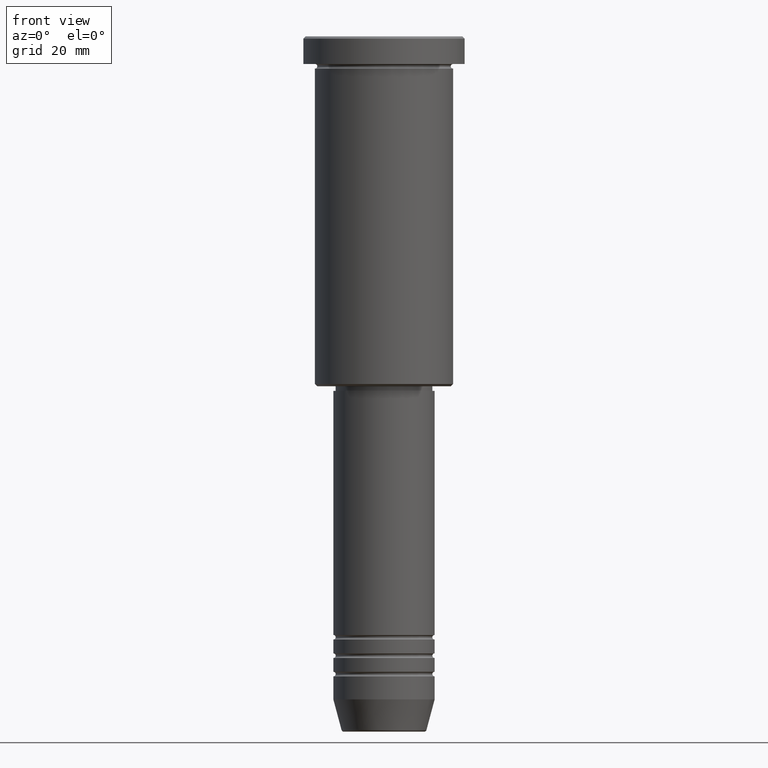
[diagram: clean part render]
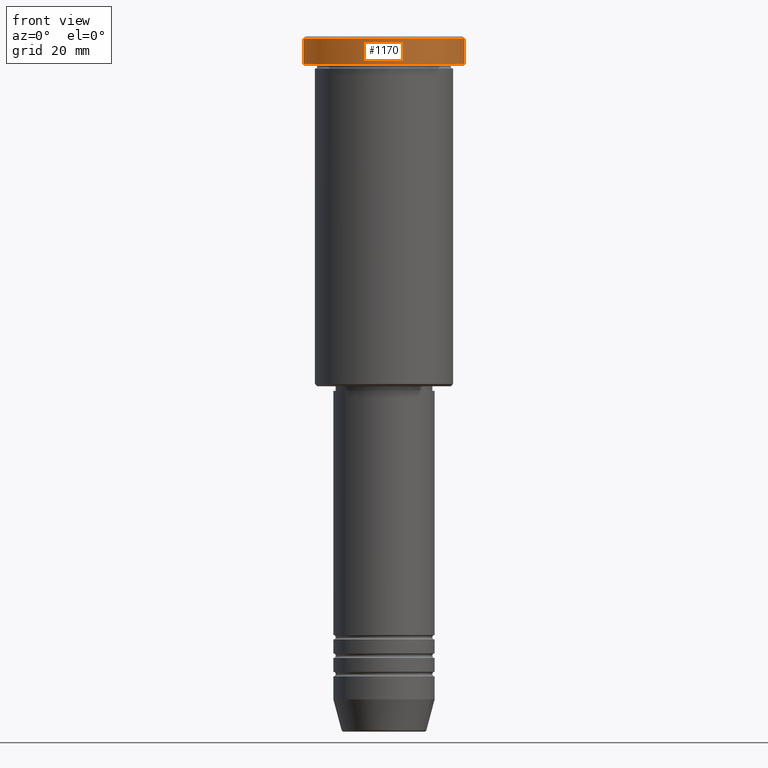
[diagram: same view with one face highlighted and labeled with its STEP entity id]
A machine part, front view. The second image highlights one B-rep face of the part: STEP entity #1170.
In plain terms, the highlighted cylindrical surface (partial cylindrical patch) has radius 17.5 mm, axis along (-0, -0, 1).
Its self-contained STEP definition (entity closure, byte-faithful):
#34 = CARTESIAN_POINT ( 'NONE',  ( -17.50000000000000000, 2.143131898507868248E-15, 0.000000000000000000 ) ) ;
#102 = ORIENTED_EDGE ( 'NONE', *, *, #1139, .T. ) ;
#106 = VERTEX_POINT ( 'NONE', #324 ) ;
#161 = DIRECTION ( 'NONE',  ( 1.000000000000000000, 0.000000000000000000, 0.000000000000000000 ) ) ;
#210 = VECTOR ( 'NONE', #574, 1000.000000000000000 ) ;
#223 = LINE ( 'NONE', #34, #210 ) ;
#305 = CARTESIAN_POINT ( 'NONE',  ( -17.50000000000000000, 2.143131898507868248E-15, -5.999999999999995559 ) ) ;
#324 = CARTESIAN_POINT ( 'NONE',  ( 17.50000000000000000, 0.000000000000000000, -0.4999999999999865663 ) ) ;
#333 = CARTESIAN_POINT ( 'NONE',  ( 17.50000000000000000, 0.000000000000000000, -5.999999999999995559 ) ) ;
#338 = AXIS2_PLACEMENT_3D ( 'NONE', #698, #795, #1157 ) ;
#342 = CARTESIAN_POINT ( 'NONE',  ( -17.50000000000000000, 2.143131898507868248E-15, -0.4999999999999865663 ) ) ;
#429 = AXIS2_PLACEMENT_3D ( 'NONE', #967, #974, #161 ) ;
#439 = CYLINDRICAL_SURFACE ( 'NONE', #338, 17.50000000000000000 ) ;
#455 = EDGE_CURVE ( 'NONE', #713, #1177, #223, .T. ) ;
#484 = DIRECTION ( 'NONE',  ( 0.000000000000000000, 0.000000000000000000, -1.000000000000000000 ) ) ;
#491 = LINE ( 'NONE', #855, #898 ) ;
#512 = CIRCLE ( 'NONE', #429, 17.50000000000000000 ) ;
#527 = FACE_OUTER_BOUND ( 'NONE', #669, .T. ) ;
#535 = VERTEX_POINT ( 'NONE', #333 ) ;
#552 = CARTESIAN_POINT ( 'NONE',  ( 0.000000000000000000, 0.000000000000000000, -0.4999999999999865663 ) ) ;
#574 = DIRECTION ( 'NONE',  ( -0.000000000000000000, -0.000000000000000000, 1.000000000000000000 ) ) ;
#604 = CIRCLE ( 'NONE', #1164, 17.50000000000000000 ) ;
#643 = DIRECTION ( 'NONE',  ( 1.000000000000000000, 0.000000000000000000, 0.000000000000000000 ) ) ;
#669 = EDGE_LOOP ( 'NONE', ( #1061, #102, #788, #1089 ) ) ;
#698 = CARTESIAN_POINT ( 'NONE',  ( 0.000000000000000000, 0.000000000000000000, 0.000000000000000000 ) ) ;
#713 = VERTEX_POINT ( 'NONE', #305 ) ;
#788 = ORIENTED_EDGE ( 'NONE', *, *, #1108, .T. ) ;
#795 = DIRECTION ( 'NONE',  ( -0.000000000000000000, -0.000000000000000000, 1.000000000000000000 ) ) ;
#855 = CARTESIAN_POINT ( 'NONE',  ( 17.50000000000000000, 0.000000000000000000, 0.000000000000000000 ) ) ;
#898 = VECTOR ( 'NONE', #1128, 1000.000000000000000 ) ;
#967 = CARTESIAN_POINT ( 'NONE',  ( 0.000000000000000000, 0.000000000000000000, -5.999999999999995559 ) ) ;
#974 = DIRECTION ( 'NONE',  ( -0.000000000000000000, -0.000000000000000000, 1.000000000000000000 ) ) ;
#1045 = EDGE_CURVE ( 'NONE', #106, #1177, #604, .T. ) ;
#1061 = ORIENTED_EDGE ( 'NONE', *, *, #455, .F. ) ;
#1089 = ORIENTED_EDGE ( 'NONE', *, *, #1045, .T. ) ;
#1108 = EDGE_CURVE ( 'NONE', #535, #106, #491, .T. ) ;
#1128 = DIRECTION ( 'NONE',  ( -0.000000000000000000, -0.000000000000000000, 1.000000000000000000 ) ) ;
#1139 = EDGE_CURVE ( 'NONE', #713, #535, #512, .T. ) ;
#1157 = DIRECTION ( 'NONE',  ( 1.000000000000000000, 0.000000000000000000, 0.000000000000000000 ) ) ;
#1164 = AXIS2_PLACEMENT_3D ( 'NONE', #552, #484, #643 ) ;
#1170 = ADVANCED_FACE ( 'NONE', ( #527 ), #439, .T. ) ;
#1177 = VERTEX_POINT ( 'NONE', #342 ) ;